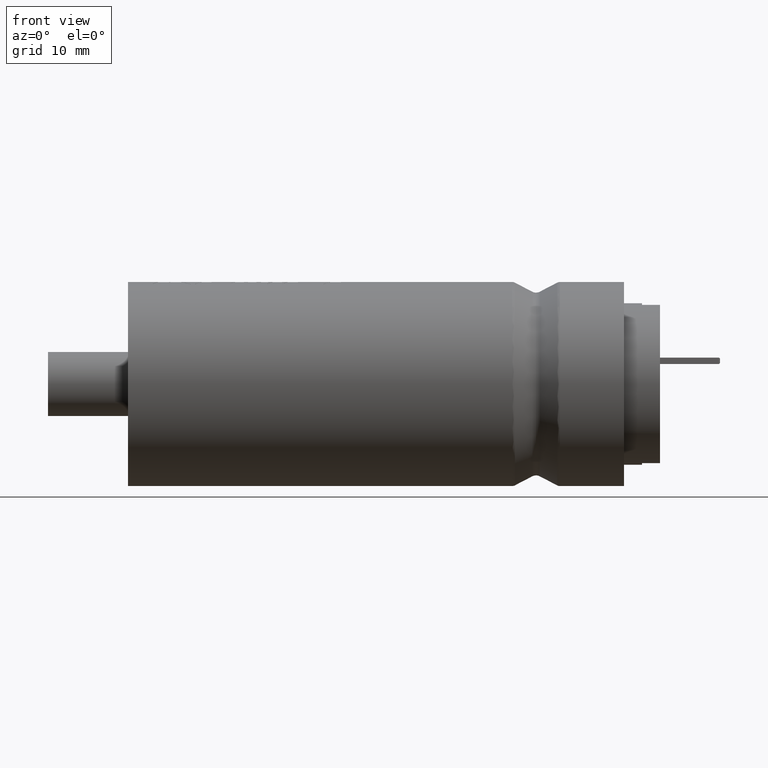
[diagram: clean part render]
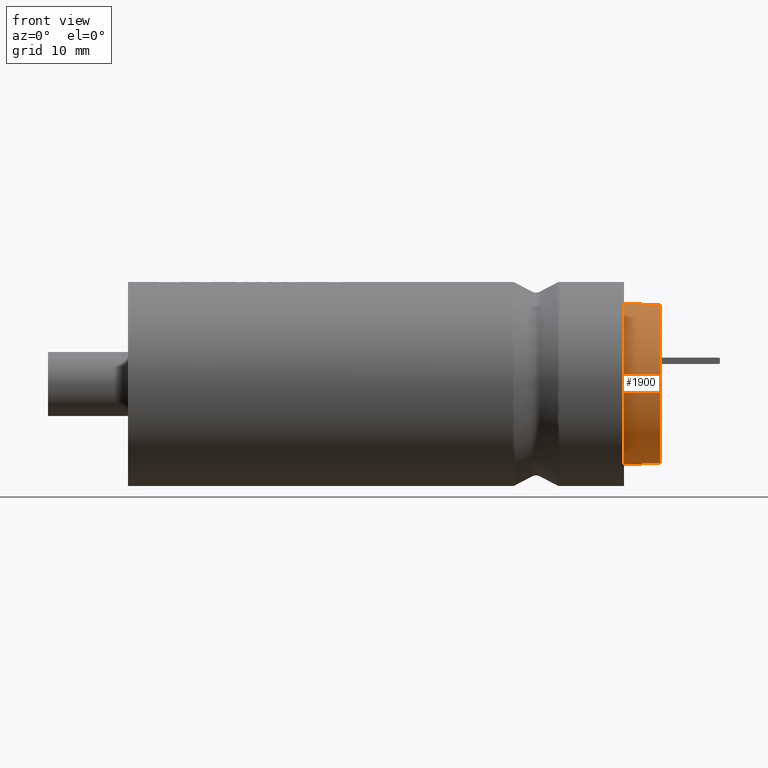
[diagram: same view with one face highlighted and labeled with its STEP entity id]
A machine part, front view. The second image highlights one B-rep face of the part: STEP entity #1900.
In plain terms, the highlighted cylindrical surface (partial cylindrical patch) has radius 10.0878 mm, axis along (-1, -0, -0).
Its self-contained STEP definition (entity closure, byte-faithful):
#85 = LINE ( 'NONE', #6189, #934 ) ;
#123 = CARTESIAN_POINT ( 'NONE',  ( 64.25000000000000000, -2.000000000000000000, -9.887553228175308500 ) ) ;
#178 = CIRCLE ( 'NONE', #272, 10.08780000000000000 ) ;
#207 = VERTEX_POINT ( 'NONE', #1376 ) ;
#272 = AXIS2_PLACEMENT_3D ( 'NONE', #1296, #4248, #1775 ) ;
#376 = DIRECTION ( 'NONE',  ( -1.000000000000000000, -0.0000000000000000000, -0.0000000000000000000 ) ) ;
#609 = DIRECTION ( 'NONE',  ( -1.000000000000000000, -0.0000000000000000000, -0.0000000000000000000 ) ) ;
#789 = VECTOR ( 'NONE', #1691, 1000.000000000000000 ) ;
#901 = CARTESIAN_POINT ( 'NONE',  ( 64.25000000000000000, 0.0000000000000000000, 0.0000000000000000000 ) ) ;
#934 = VECTOR ( 'NONE', #4689, 1000.000000000000000 ) ;
#1013 = LINE ( 'NONE', #2009, #2539 ) ;
#1118 = CARTESIAN_POINT ( 'NONE',  ( 64.25000000000000000, 0.0000000000000000000, 10.08780000000000000 ) ) ;
#1153 = ORIENTED_EDGE ( 'NONE', *, *, #1819, .T. ) ;
#1180 = VERTEX_POINT ( 'NONE', #1481 ) ;
#1207 = AXIS2_PLACEMENT_3D ( 'NONE', #2891, #1379, #4306 ) ;
#1296 = CARTESIAN_POINT ( 'NONE',  ( 64.25000000000000000, 0.0000000000000000000, 0.0000000000000000000 ) ) ;
#1376 = CARTESIAN_POINT ( 'NONE',  ( 62.00000000000000000, 1.235399198043866800E-015, -10.08780000000000000 ) ) ;
#1379 = DIRECTION ( 'NONE',  ( 1.000000000000000000, 0.0000000000000000000, 0.0000000000000000000 ) ) ;
#1412 = DIRECTION ( 'NONE',  ( 0.0000000000000000000, 0.0000000000000000000, 1.000000000000000000 ) ) ;
#1439 = DIRECTION ( 'NONE',  ( -1.000000000000000000, -0.0000000000000000000, -0.0000000000000000000 ) ) ;
#1481 = CARTESIAN_POINT ( 'NONE',  ( 64.25000000000000000, -2.000000000000000000, 9.887553228175308500 ) ) ;
#1544 = EDGE_CURVE ( 'NONE', #3390, #6151, #3986, .T. ) ;
#1668 = ORIENTED_EDGE ( 'NONE', *, *, #5623, .T. ) ;
#1691 = DIRECTION ( 'NONE',  ( -1.000000000000000000, -0.0000000000000000000, -0.0000000000000000000 ) ) ;
#1701 = EDGE_CURVE ( 'NONE', #3644, #3119, #85, .T. ) ;
#1713 = ORIENTED_EDGE ( 'NONE', *, *, #1701, .T. ) ;
#1775 = DIRECTION ( 'NONE',  ( 0.0000000000000000000, 0.0000000000000000000, 1.000000000000000000 ) ) ;
#1819 = EDGE_CURVE ( 'NONE', #4195, #1180, #1013, .T. ) ;
#1835 = CIRCLE ( 'NONE', #3946, 10.08780000000000000 ) ;
#1900 = ADVANCED_FACE ( 'NONE', ( #4087 ), #2323, .T. ) ;
#2009 = CARTESIAN_POINT ( 'NONE',  ( 66.50000000000000000, -2.000000000000000000, 9.887553228175308500 ) ) ;
#2121 = DIRECTION ( 'NONE',  ( 0.0000000000000000000, 0.0000000000000000000, -1.000000000000000000 ) ) ;
#2323 = CYLINDRICAL_SURFACE ( 'NONE', #4465, 10.08780000000000000 ) ;
#2366 = EDGE_CURVE ( 'NONE', #1180, #3390, #178, .T. ) ;
#2493 = DIRECTION ( 'NONE',  ( -1.000000000000000000, -0.0000000000000000000, -0.0000000000000000000 ) ) ;
#2516 = VECTOR ( 'NONE', #376, 1000.000000000000000 ) ;
#2539 = VECTOR ( 'NONE', #2493, 1000.000000000000000 ) ;
#2577 = VERTEX_POINT ( 'NONE', #5868 ) ;
#2598 = CIRCLE ( 'NONE', #1207, 10.08780000000000000 ) ;
#2714 = CARTESIAN_POINT ( 'NONE',  ( 62.00000000000000000, 0.0000000000000000000, 10.08780000000000000 ) ) ;
#2745 = LINE ( 'NONE', #2763, #2516 ) ;
#2763 = CARTESIAN_POINT ( 'NONE',  ( 66.50000000000000000, 1.235399198043866800E-015, -10.08780000000000000 ) ) ;
#2796 = ORIENTED_EDGE ( 'NONE', *, *, #4078, .F. ) ;
#2891 = CARTESIAN_POINT ( 'NONE',  ( 66.50000000000000000, 0.0000000000000000000, 0.0000000000000000000 ) ) ;
#2978 = CIRCLE ( 'NONE', #3253, 10.08780000000000000 ) ;
#3119 = VERTEX_POINT ( 'NONE', #6039 ) ;
#3195 = ORIENTED_EDGE ( 'NONE', *, *, #2366, .T. ) ;
#3253 = AXIS2_PLACEMENT_3D ( 'NONE', #6031, #5562, #2121 ) ;
#3390 = VERTEX_POINT ( 'NONE', #1118 ) ;
#3598 = CARTESIAN_POINT ( 'NONE',  ( 66.50000000000000000, 0.0000000000000000000, 0.0000000000000000000 ) ) ;
#3644 = VERTEX_POINT ( 'NONE', #123 ) ;
#3667 = EDGE_LOOP ( 'NONE', ( #2796, #5450, #1713, #6058, #1153, #3195, #4149, #1668 ) ) ;
#3946 = AXIS2_PLACEMENT_3D ( 'NONE', #901, #1439, #1412 ) ;
#3986 = LINE ( 'NONE', #6055, #789 ) ;
#4078 = EDGE_CURVE ( 'NONE', #2577, #207, #2745, .T. ) ;
#4087 = FACE_OUTER_BOUND ( 'NONE', #3667, .T. ) ;
#4117 = EDGE_CURVE ( 'NONE', #4195, #3119, #2598, .T. ) ;
#4149 = ORIENTED_EDGE ( 'NONE', *, *, #1544, .T. ) ;
#4195 = VERTEX_POINT ( 'NONE', #6317 ) ;
#4248 = DIRECTION ( 'NONE',  ( -1.000000000000000000, -0.0000000000000000000, -0.0000000000000000000 ) ) ;
#4306 = DIRECTION ( 'NONE',  ( 0.0000000000000000000, 0.0000000000000000000, -1.000000000000000000 ) ) ;
#4465 = AXIS2_PLACEMENT_3D ( 'NONE', #3598, #609, #5026 ) ;
#4689 = DIRECTION ( 'NONE',  ( 1.000000000000000000, 0.0000000000000000000, 0.0000000000000000000 ) ) ;
#5026 = DIRECTION ( 'NONE',  ( 0.0000000000000000000, 0.0000000000000000000, 1.000000000000000000 ) ) ;
#5450 = ORIENTED_EDGE ( 'NONE', *, *, #6239, .T. ) ;
#5562 = DIRECTION ( 'NONE',  ( 1.000000000000000000, 0.0000000000000000000, 0.0000000000000000000 ) ) ;
#5623 = EDGE_CURVE ( 'NONE', #6151, #207, #2978, .T. ) ;
#5868 = CARTESIAN_POINT ( 'NONE',  ( 64.25000000000000000, 1.235399198043866800E-015, -10.08780000000000000 ) ) ;
#6031 = CARTESIAN_POINT ( 'NONE',  ( 62.00000000000000000, 0.0000000000000000000, 0.0000000000000000000 ) ) ;
#6039 = CARTESIAN_POINT ( 'NONE',  ( 66.50000000000000000, -2.000000000000000000, -9.887553228175308500 ) ) ;
#6055 = CARTESIAN_POINT ( 'NONE',  ( 66.50000000000000000, 0.0000000000000000000, 10.08780000000000000 ) ) ;
#6058 = ORIENTED_EDGE ( 'NONE', *, *, #4117, .F. ) ;
#6151 = VERTEX_POINT ( 'NONE', #2714 ) ;
#6189 = CARTESIAN_POINT ( 'NONE',  ( 66.50000000000000000, -2.000000000000000000, -9.887553228175308500 ) ) ;
#6239 = EDGE_CURVE ( 'NONE', #2577, #3644, #1835, .T. ) ;
#6317 = CARTESIAN_POINT ( 'NONE',  ( 66.50000000000000000, -2.000000000000000000, 9.887553228175310200 ) ) ;